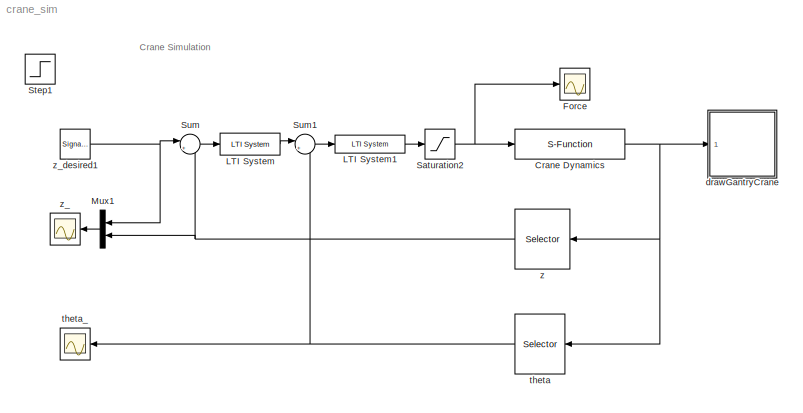
MODEL crane_sim
KIND model
BLOCK [S-Function] Crane Dynamics
  EnableBusSupport = off
  FunctionName = crane_dynamics
  Parameters = P
  Ports = [1, 1]
  SID = 11
BLOCK [Scope] Force
  DataFormat = StructureWithTime
  Floating = off
  LimitDataPoints = off
  NumInputPorts = 1
  Ports = [1]
  SID = 21
  SampleTime = 0
  ShowLegends = off
  TimeRange = 100
  YMax = 1250
  YMin = -1000
BLOCK [Reference] LTI System  REF=cstblocks/LTI System
  IC = []
  Ports = [1, 1]
  SID = 53
  SourceBlock = cstblocks/LTI System
  SourceType = LTI Block
  sys = c_outer
BLOCK [Reference] LTI System1  REF=cstblocks/LTI System
  IC = []
  Ports = [1, 1]
  SID = 54
  SourceBlock = cstblocks/LTI System
  SourceType = LTI Block
  sys = c_inner
BLOCK [Mux] Mux1
  DisplayOption = bar
  Inputs = 2
  Ports = [2, 1]
  SID = 24
BLOCK [Saturate] Saturation2
  InputPortMap = u0
  LowerLimit = -P.F_max
  Ports = [1, 1]
  SID = 37
  UpperLimit = P.F_max
BLOCK [Step] Step1
  After = 7
  SID = 57
  SampleTime = 0
  Time = 20
BLOCK [Sum] Sum
  IconShape = round
  InputSameDT = off
  Inputs = |+-
  OutDataTypeStr = Inherit: Inherit via internal rule
  Ports = [2, 1]
  SID = 55
  SaturateOnIntegerOverflow = off
BLOCK [Sum] Sum1
  IconShape = round
  InputSameDT = off
  Inputs = |+-
  OutDataTypeStr = Inherit: Inherit via internal rule
  Ports = [2, 1]
  SID = 56
  SaturateOnIntegerOverflow = off
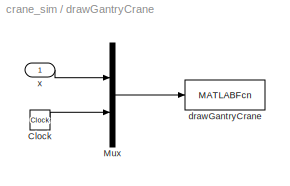
BLOCK [SubSystem] drawGantryCrane
  Ports = [1]
  RequestExecContextInheritance = off
  SID = 4
BLOCK [Clock] drawGantryCrane/Clock
  SID = 6
BLOCK [Mux] drawGantryCrane/Mux
  DisplayOption = bar
  Inputs = 2
  Ports = [2, 1]
  SID = 7
BLOCK [MATLABFcn] drawGantryCrane/drawGantryCrane
  MATLABFcn = drawGantryCrane(u,bar,crane,L1,R1)\n
  OutputDimensions = 0
  Ports = [1]
  SID = 8
  SampleTime = 0.1
BLOCK [Inport] drawGantryCrane/x
  IconDisplay = Port number
  SID = 5
BLOCK [Selector] theta
  Indices = [4]
  InputPortWidth = 4
  Ports = [1, 1]
  SID = 46
BLOCK [Scope] theta_
  DataFormat = StructureWithTime
  Floating = off
  LimitDataPoints = off
  NumInputPorts = 1
  Ports = [1]
  SID = 23
  SampleTime = 0
  SaveName = ScopeData1
  ShowLegends = off
  TimeRange = 100
  YMax = 0.2
  YMin = -0.2
BLOCK [Selector] z
  Indices = [3]
  InputPortWidth = 4
  Ports = [1, 1]
  SID = 49
BLOCK [Scope] z_
  DataFormat = StructureWithTime
  Floating = off
  LimitDataPoints = off
  NumInputPorts = 1
  Ports = [1]
  SID = 25
  SampleTime = 0
  SaveName = ScopeData2
  ShowLegends = off
  TimeRange = 100
  YMax = 7
  YMin = -8
BLOCK [SignalGenerator] z_desired1
  Amplitude = 7
  Frequency = .01
  Ports = [0, 1]
  SID = 51
  WaveForm = square
ANNOTATION (root): Crane Simulation
NET Crane Dynamics:1 -> drawGantryCrane:1, theta:1, z:1
LINE LTI System1:1 -> Saturation2:1
LINE LTI System:1 -> Sum1:1
LINE Mux1:1 -> z_:1
NET Saturation2:1 -> Crane Dynamics:1, Force:1
LINE Sum1:1 -> LTI System1:1
LINE Sum:1 -> LTI System:1
LINE drawGantryCrane/Clock:1 -> drawGantryCrane/Mux:2
LINE drawGantryCrane/Mux:1 -> drawGantryCrane/drawGantryCrane:1
LINE drawGantryCrane/x:1 -> drawGantryCrane/Mux:1
NET theta:1 -> Sum1:2, theta_:1
NET z:1 -> Mux1:2, Sum:2
NET z_desired1:1 -> Mux1:1, Sum:1
note: NET lines group one-source signal fan-out (src -> all destinations, sorted); 1:1 wires keep LINE
